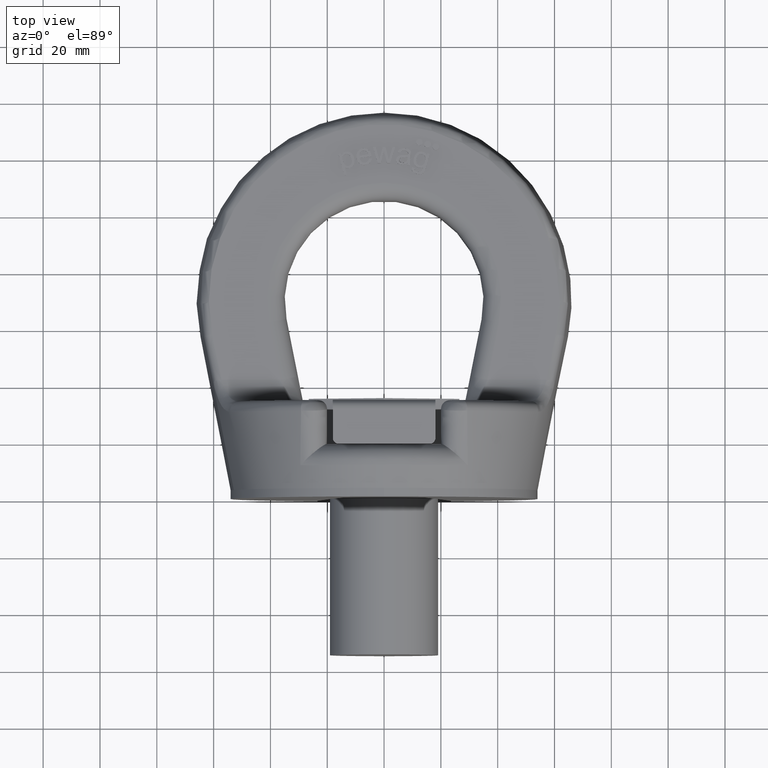
[diagram: clean part render]
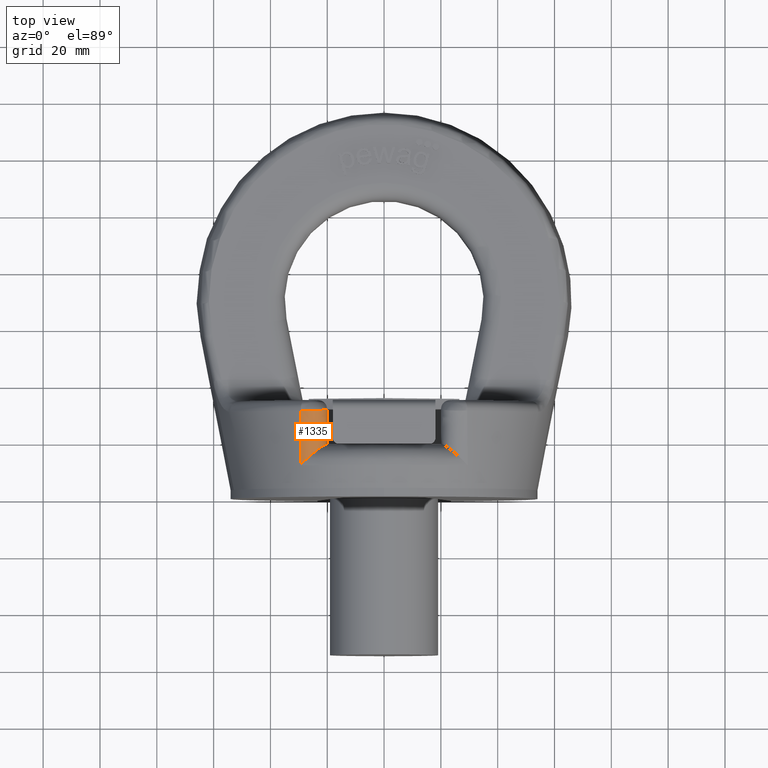
[diagram: same view with one face highlighted and labeled with its STEP entity id]
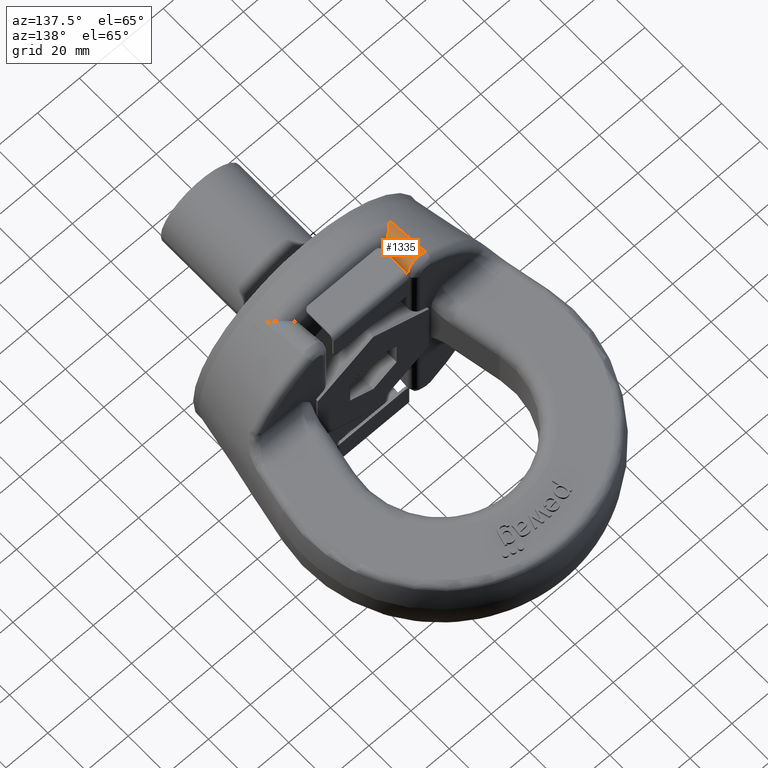
[diagram: same view with one face highlighted and labeled with its STEP entity id]
A machine part, top view. The second image highlights one B-rep face of the part: STEP entity #1335.
A second angle (auxiliary view) of the same face is appended — the face is thin or edge-on in the first view.
In plain terms, the highlighted face is a freeform B-spline surface patch.
Its self-contained STEP definition (entity closure, byte-faithful):
#1025=(
BOUNDED_SURFACE()
B_SPLINE_SURFACE(3,2,((#6981,#6982,#6983),(#6984,#6985,#6986),(#6987,#6988,
#6989),(#6990,#6991,#6992)),.UNSPECIFIED.,.F.,.F.,.F.)
B_SPLINE_SURFACE_WITH_KNOTS((4,4),(3,3),(0.,1.),(0.,1.),.UNSPECIFIED.)
GEOMETRIC_REPRESENTATION_ITEM()
RATIONAL_B_SPLINE_SURFACE(((1.,0.508702736378669,1.),(1.,0.502965470122924,
1.),(1.,0.496724564723301,1.),(1.,0.489810194650877,1.)))
REPRESENTATION_ITEM('')
SURFACE()
);
#1111=FACE_OUTER_BOUND('',#1851,.T.);
#1335=ADVANCED_FACE('',(#1111),#1025,.T.);
#1851=EDGE_LOOP('',(#2907,#2908,#2909,#2910,#2911));
#2907=ORIENTED_EDGE('',*,*,#4347,.F.);
#2908=ORIENTED_EDGE('',*,*,#4430,.T.);
#2909=ORIENTED_EDGE('',*,*,#4388,.F.);
#2910=ORIENTED_EDGE('',*,*,#4431,.F.);
#2911=ORIENTED_EDGE('',*,*,#4349,.F.);
#3959=VERTEX_POINT('',#6639);
#3960=VERTEX_POINT('',#6647);
#3961=VERTEX_POINT('',#6654);
#3998=VERTEX_POINT('',#6844);
#3999=VERTEX_POINT('',#6852);
#4347=EDGE_CURVE('',#3959,#3960,#4879,.T.);
#4349=EDGE_CURVE('',#3960,#3961,#4880,.T.);
#4388=EDGE_CURVE('',#3998,#3999,#4896,.T.);
#4430=EDGE_CURVE('',#3959,#3999,#4901,.T.);
#4431=EDGE_CURVE('',#3961,#3998,#4902,.T.);
#4879=B_SPLINE_CURVE_WITH_KNOTS('',3,(#6640,#6641,#6642,#6643,#6644,#6645,
#6646),.UNSPECIFIED.,.F.,.F.,(4,3,4),(0.,0.319477542971856,1.),
 .UNSPECIFIED.);
#4880=B_SPLINE_CURVE_WITH_KNOTS('',3,(#6650,#6651,#6652,#6653),
 .UNSPECIFIED.,.F.,.F.,(4,4),(0.,1.),.UNSPECIFIED.);
#4896=B_SPLINE_CURVE_WITH_KNOTS('',3,(#6845,#6846,#6847,#6848,#6849,#6850,
#6851),.UNSPECIFIED.,.F.,.F.,(4,3,4),(0.,0.762404368257285,1.),
 .UNSPECIFIED.);
#4901=B_SPLINE_CURVE_WITH_KNOTS('',3,(#6967,#6968,#6969,#6970,#6971,#6972),
 .UNSPECIFIED.,.F.,.F.,(4,2,4),(0.,0.5,1.),.UNSPECIFIED.);
#4902=B_SPLINE_CURVE_WITH_KNOTS('',3,(#6973,#6974,#6975,#6976,#6977,#6978,
#6979,#6980),.UNSPECIFIED.,.F.,.F.,(4,2,2,4),(0.,0.25,0.5,1.),
 .UNSPECIFIED.);
#6639=CARTESIAN_POINT('',(-20.05,30.9,46.2859342214069));
#6640=CARTESIAN_POINT('',(-20.05,30.9,46.2859342214069));
#6641=CARTESIAN_POINT('',(-20.05,29.5789737703474,45.9848063880939));
#6642=CARTESIAN_POINT('',(-20.05,28.2581022459016,45.6829989682984));
#6643=CARTESIAN_POINT('',(-20.05,26.9373959024224,45.3804712411067));
#6644=CARTESIAN_POINT('',(-20.05,24.1241465612388,44.7360540067882));
#6645=CARTESIAN_POINT('',(-20.05,21.3116422286923,44.0883731687731));
#6646=CARTESIAN_POINT('',(-20.05,18.5,43.4369797351318));
#6647=CARTESIAN_POINT('',(-20.05,18.5,43.4369797351318));
#6650=CARTESIAN_POINT('',(-20.05,18.5,43.4369797351318));
#6651=CARTESIAN_POINT('',(-20.05,18.5,44.0225324551366));
#6652=CARTESIAN_POINT('',(-20.1300914744361,18.5,44.6133565695184));
#6653=CARTESIAN_POINT('',(-20.2864178499622,18.5,45.1776561816217));
#6654=CARTESIAN_POINT('',(-20.2864178499622,18.5,45.1776561816217));
#6844=CARTESIAN_POINT('',(-29.4735725599546,11.0941259902093,47.150990391972));
#6845=CARTESIAN_POINT('',(-29.4735725599546,11.0941259902093,47.150990391972));
#6846=CARTESIAN_POINT('',(-29.4106460138932,15.9696598942446,48.330387504701));
#6847=CARTESIAN_POINT('',(-29.351343672369,20.8491050516684,49.4938822455643));
#6848=CARTESIAN_POINT('',(-29.2951123484022,25.7315218926317,50.6448001307298));
#6849=CARTESIAN_POINT('',(-29.2775883655538,27.2530828829144,51.0034732662134));
#6850=CARTESIAN_POINT('',(-29.2603634611679,28.7749374053995,51.3609178388422));
#6851=CARTESIAN_POINT('',(-29.2434230673363,30.2970629951047,51.7172155619112));
#6852=CARTESIAN_POINT('',(-29.2434230673363,30.2970629951047,51.7172155619112));
#6967=CARTESIAN_POINT('',(-20.05,30.9,46.2859342214069));
#6968=CARTESIAN_POINT('',(-20.05,30.6606007761828,48.4409597421314));
#6969=CARTESIAN_POINT('',(-21.2373910525503,30.429628814178,50.522262071927));
#6970=CARTESIAN_POINT('',(-24.9347463715279,30.1861503415004,52.7169843597046));
#6971=CARTESIAN_POINT('',(-27.3472133427668,30.181048654082,52.7629981115406));
#6972=CARTESIAN_POINT('',(-29.2434230673349,30.2970629951045,51.7172155619119));
#6973=CARTESIAN_POINT('',(-20.2864178499622,18.5,45.1776561816217));
#6974=CARTESIAN_POINT('',(-20.5991136064763,18.5,46.3064106449263));
#6975=CARTESIAN_POINT('',(-21.2583819935209,18.1448439405855,47.2916156324453));
#6976=CARTESIAN_POINT('',(-22.8643474145742,17.0394117517381,48.5461013128824));
#6977=CARTESIAN_POINT('',(-23.7747563559215,16.3267503977556,48.8446898863957));
#6978=CARTESIAN_POINT('',(-26.4483571424531,14.1016559272014,49.0533509095454));
#6979=CARTESIAN_POINT('',(-28.1200597038977,12.5393935523167,48.3350083456733));
#6980=CARTESIAN_POINT('',(-29.4735725599547,11.0941259902093,47.150990391972));
#6981=CARTESIAN_POINT('',(-29.2411469224106,30.5017344377735,51.7651175693836));
#6982=CARTESIAN_POINT('',(-20.05,29.377673520684,56.7010415287751));
#6983=CARTESIAN_POINT('',(-20.05,31.7076084475642,46.4699397667915));
#6984=CARTESIAN_POINT('',(-29.3135126101603,23.9896445109699,50.2412374095138));
#6985=CARTESIAN_POINT('',(-20.0500000001055,22.7381342902138,55.3545972744278));
#6986=CARTESIAN_POINT('',(-20.05,25.1955216286009,44.9869383384288));
#6987=CARTESIAN_POINT('',(-29.3910599494364,17.4812101911422,48.6963879088323));
#6988=CARTESIAN_POINT('',(-20.0499999998629,16.1533844036648,54.0210081762504));
#6989=CARTESIAN_POINT('',(-20.05,18.6870890230466,43.4877972602284));
#6990=CARTESIAN_POINT('',(-29.4750660678793,10.9784629371403,47.1230081881964));
#6991=CARTESIAN_POINT('',(-20.05,9.6711991659609,52.7125746702005));
#6992=CARTESIAN_POINT('',(-20.05,12.184336946931,41.9669615698729));